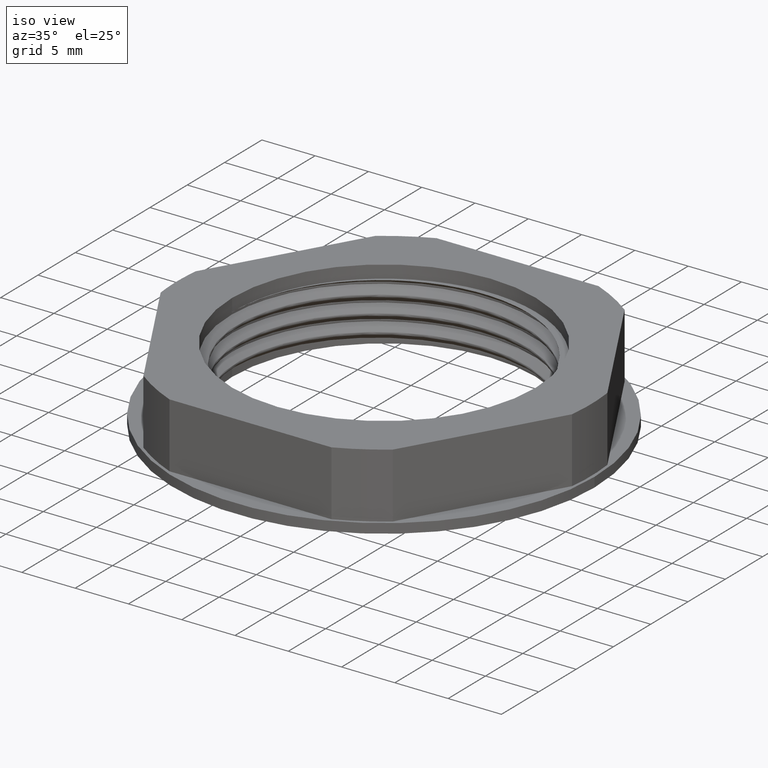
[diagram: clean part render]
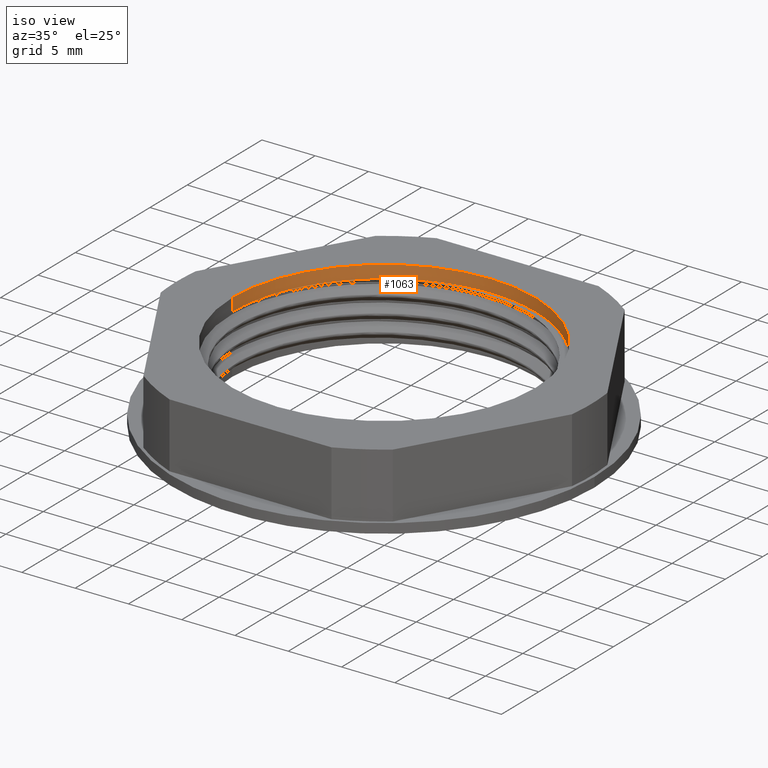
[diagram: same view with one face highlighted and labeled with its STEP entity id]
A machine part, iso view. The second image highlights one B-rep face of the part: STEP entity #1063.
In plain terms, the highlighted cylindrical surface (partial cylindrical patch) has radius 14.25 mm, axis along (0, 0, 1).
Its self-contained STEP definition (entity closure, byte-faithful):
#713 = CARTESIAN_POINT ( 'NONE',  ( 2363.492954869249800, 871.3999937272660600, 12.22366552085515000 ) ) ;
#722 = DIRECTION ( 'NONE',  ( 1.000000000000000000, 0.0000000000000000000, 0.0000000000000000000 ) ) ;
#724 = FACE_OUTER_BOUND ( 'NONE', #1553, .T. ) ;
#732 = DIRECTION ( 'NONE',  ( 0.0000000000000000000, 0.0000000000000000000, 1.000000000000000000 ) ) ;
#737 = CYLINDRICAL_SURFACE ( 'NONE', #2136, 14.25000000000009600 ) ;
#982 = EDGE_CURVE ( 'NONE', #1468, #1491, #1776, .T. ) ;
#1007 = EDGE_CURVE ( 'NONE', #1496, #1461, #1978, .T. ) ;
#1014 = EDGE_CURVE ( 'NONE', #1468, #1496, #2068, .T. ) ;
#1021 = EDGE_CURVE ( 'NONE', #1491, #1461, #2083, .T. ) ;
#1063 = ADVANCED_FACE ( 'NONE', ( #724 ), #737, .F. ) ;
#1126 = CARTESIAN_POINT ( 'NONE',  ( 2349.242954869249800, 871.3999937272660600, 23.42366552085514900 ) ) ;
#1190 = CARTESIAN_POINT ( 'NONE',  ( 2377.742954869249800, 871.3999937272660600, 22.22366552085515000 ) ) ;
#1206 = CARTESIAN_POINT ( 'NONE',  ( 2377.742954869249800, 871.3999937272660600, 23.42366552085514900 ) ) ;
#1220 = CARTESIAN_POINT ( 'NONE',  ( 2349.242954869249800, 871.3999937272660600, 22.22366552085515000 ) ) ;
#1372 = DIRECTION ( 'NONE',  ( 0.0000000000000000000, 0.0000000000000000000, 1.000000000000000000 ) ) ;
#1393 = CARTESIAN_POINT ( 'NONE',  ( 2363.492954869249800, 871.3999937272660600, 23.42366552085514900 ) ) ;
#1398 = DIRECTION ( 'NONE',  ( 1.000000000000000000, 0.0000000000000000000, 0.0000000000000000000 ) ) ;
#1461 = VERTEX_POINT ( 'NONE', #1126 ) ;
#1468 = VERTEX_POINT ( 'NONE', #1190 ) ;
#1491 = VERTEX_POINT ( 'NONE', #1206 ) ;
#1496 = VERTEX_POINT ( 'NONE', #1220 ) ;
#1553 = EDGE_LOOP ( 'NONE', ( #1676, #1670, #1677, #1710 ) ) ;
#1670 = ORIENTED_EDGE ( 'NONE', *, *, #1014, .F. ) ;
#1676 = ORIENTED_EDGE ( 'NONE', *, *, #1007, .F. ) ;
#1677 = ORIENTED_EDGE ( 'NONE', *, *, #982, .T. ) ;
#1710 = ORIENTED_EDGE ( 'NONE', *, *, #1021, .T. ) ;
#1776 = LINE ( 'NONE', #1800, #2175 ) ;
#1800 = CARTESIAN_POINT ( 'NONE',  ( 2377.742954869249800, 871.3999937272660600, 12.22366552085515000 ) ) ;
#1802 = DIRECTION ( 'NONE',  ( 0.0000000000000000000, 0.0000000000000000000, 1.000000000000000000 ) ) ;
#1975 = CARTESIAN_POINT ( 'NONE',  ( 2349.242954869249800, 871.3999937272660600, 12.22366552085515000 ) ) ;
#1978 = LINE ( 'NONE', #1975, #2057 ) ;
#1979 = DIRECTION ( 'NONE',  ( 0.0000000000000000000, 0.0000000000000000000, 1.000000000000000000 ) ) ;
#2014 = CARTESIAN_POINT ( 'NONE',  ( 2363.492954869249800, 871.3999937272660600, 22.22366552085515000 ) ) ;
#2015 = DIRECTION ( 'NONE',  ( 0.0000000000000000000, 0.0000000000000000000, 1.000000000000000000 ) ) ;
#2028 = DIRECTION ( 'NONE',  ( 1.000000000000000000, 0.0000000000000000000, 0.0000000000000000000 ) ) ;
#2057 = VECTOR ( 'NONE', #1979, 1000.000000000000000 ) ;
#2065 = AXIS2_PLACEMENT_3D ( 'NONE', #2014, #2015, #2028 ) ;
#2068 = CIRCLE ( 'NONE', #2065, 14.25000000000009600 ) ;
#2072 = AXIS2_PLACEMENT_3D ( 'NONE', #1393, #1372, #1398 ) ;
#2083 = CIRCLE ( 'NONE', #2072, 14.25000000000009600 ) ;
#2136 = AXIS2_PLACEMENT_3D ( 'NONE', #713, #732, #722 ) ;
#2175 = VECTOR ( 'NONE', #1802, 1000.000000000000000 ) ;